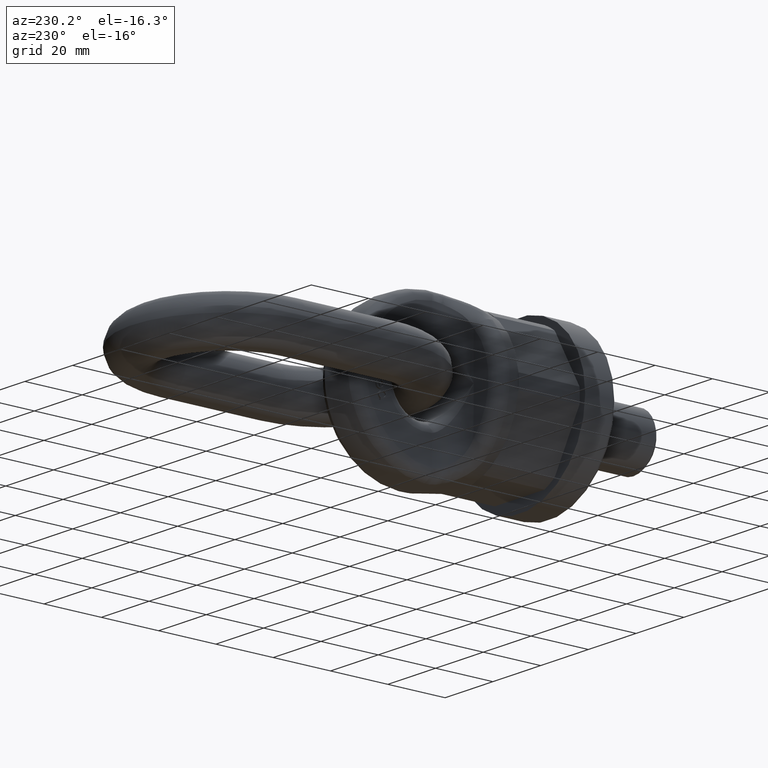
[diagram: clean part render]
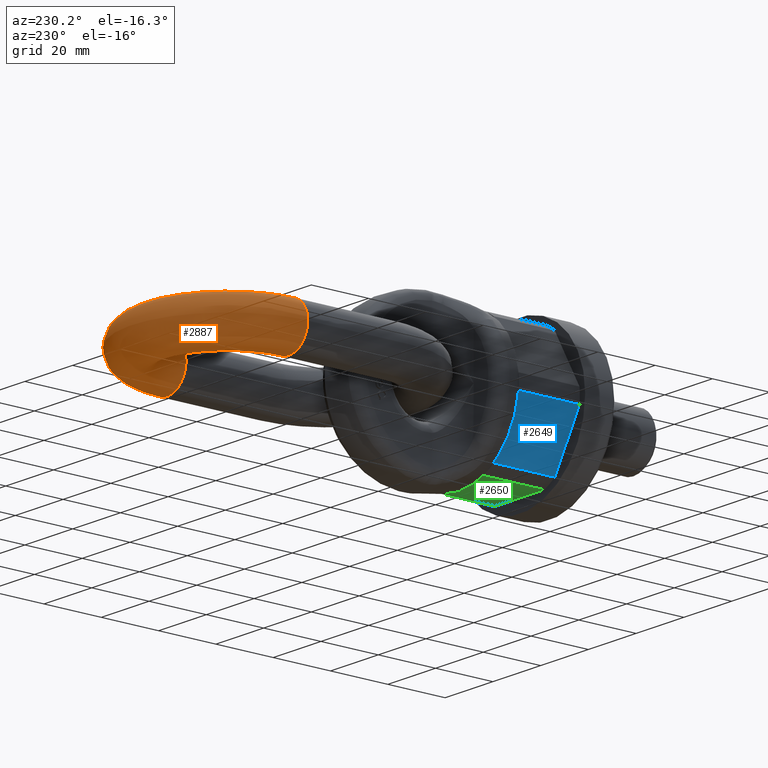
[diagram: same view with three faces highlighted in distinct colors, each labeled with its STEP entity id]
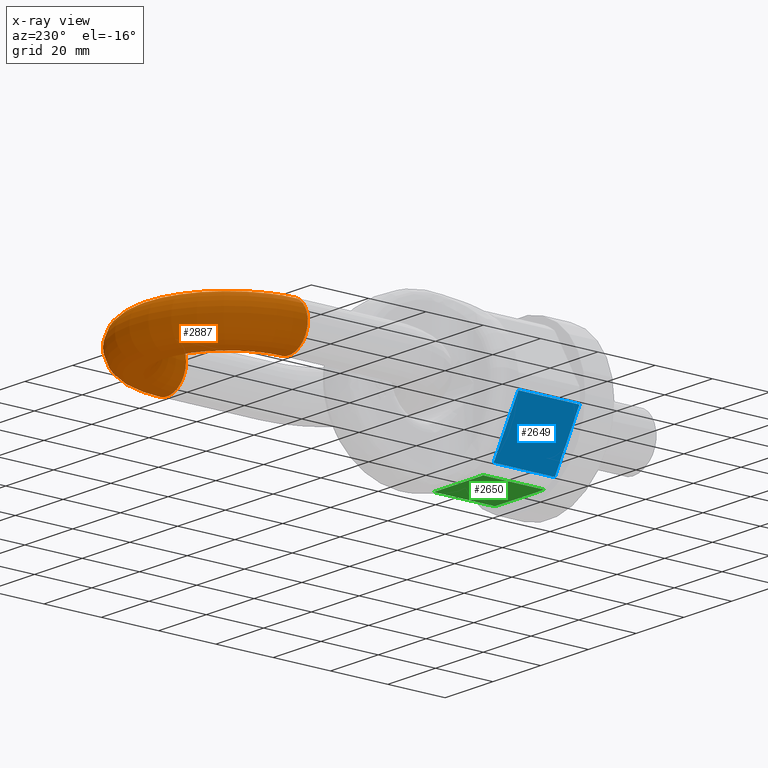
[diagram: x-ray of the same camera — body ghosted, the three highlighted faces saturated]
A machine part, auxiliary view with three faces highlighted in distinct colors.
The next image is the same camera in x-ray (body ghosted, the three faces saturated) — at least one of them is partly hidden behind the body in this view.
Their STEP definitions:

[orange] entity #2887 — the highlighted toroidal blend (fillet) surface has major radius 25.5 mm and minor (blend) radius 8 mm.
#1805=TOROIDAL_SURFACE('',#5808,25.5,8.);
#2887=ADVANCED_FACE('',(#3063,#3064),#1805,.T.);
#3063=FACE_BOUND('',#3349,.T.);
#3064=FACE_BOUND('',#3350,.T.);
#3349=EDGE_LOOP('',(#4541));
#3350=EDGE_LOOP('',(#4542));
#4541=ORIENTED_EDGE('',*,*,#5536,.F.);
#4542=ORIENTED_EDGE('',*,*,#5534,.T.);
#4938=VERTEX_POINT('',#9688);
#4940=VERTEX_POINT('',#9694);
#5534=EDGE_CURVE('',#4938,#4938,#5600,.T.);
#5536=EDGE_CURVE('',#4940,#4940,#5602,.T.);
#5600=CIRCLE('',#5802,8.);
#5602=CIRCLE('',#5806,8.);
#5802=AXIS2_PLACEMENT_3D('',#9687,#6555,#6556);
#5806=AXIS2_PLACEMENT_3D('',#9693,#6563,#6564);
#5808=AXIS2_PLACEMENT_3D('',#9696,#6567,#6568);
#6555=DIRECTION('',(-1.21365530983203E-15,1.,0.));
#6556=DIRECTION('',(-1.,-1.73472347597681E-15,0.));
#6563=DIRECTION('',(2.03012210217171E-16,-1.,0.));
#6564=DIRECTION('',(1.,0.,0.));
#6567=DIRECTION('',(0.,0.,1.));
#6568=DIRECTION('',(1.,0.,0.));
#9687=CARTESIAN_POINT('',(-25.5,112.5,0.));
#9688=CARTESIAN_POINT('',(-33.5,112.5,0.));
#9693=CARTESIAN_POINT('',(25.5,112.5,0.));
#9694=CARTESIAN_POINT('',(33.5,112.5,0.));
#9696=CARTESIAN_POINT('',(1.73472347597681E-14,112.5,0.));

[blue] entity #2649 — the highlighted planar face has unit normal (-0.866, 0, -0.5).
#1807=FACE_OUTER_BOUND('',#3072,.T.);
#2044=LINE('',#6590,#2300);
#2050=LINE('',#6611,#2306);
#2051=LINE('',#6613,#2307);
#2052=LINE('',#6615,#2308);
#2300=VECTOR('',#5828,1.);
#2306=VECTOR('',#5848,1.);
#2307=VECTOR('',#5849,1.);
#2308=VECTOR('',#5850,1.);
#2649=ADVANCED_FACE('',(#1807),#2891,.T.);
#2891=PLANE('',#5618);
#3072=EDGE_LOOP('',(#3372,#3373,#3374,#3375));
#3372=ORIENTED_EDGE('',*,*,#4960,.F.);
#3373=ORIENTED_EDGE('',*,*,#4950,.T.);
#3374=ORIENTED_EDGE('',*,*,#4961,.F.);
#3375=ORIENTED_EDGE('',*,*,#4962,.T.);
#4552=VERTEX_POINT('',#6589);
#4553=VERTEX_POINT('',#6591);
#4561=VERTEX_POINT('',#6612);
#4562=VERTEX_POINT('',#6614);
#4950=EDGE_CURVE('',#4553,#4552,#2044,.T.);
#4960=EDGE_CURVE('',#4553,#4561,#2050,.T.);
#4961=EDGE_CURVE('',#4562,#4552,#2051,.T.);
#4962=EDGE_CURVE('',#4562,#4561,#2052,.T.);
#5618=AXIS2_PLACEMENT_3D('',#6616,#5851,#5852);
#5828=DIRECTION('',(-0.499999999999999,-2.05702392044282E-17,0.866025403784439));
#5848=DIRECTION('',(-2.4492935982947E-17,1.,0.));
#5849=DIRECTION('',(2.4492935982947E-17,-1.,0.));
#5850=DIRECTION('',(0.499999999999999,0.,-0.866025403784439));
#5851=DIRECTION('',(-0.866025403784439,0.,-0.499999999999999));
#5852=DIRECTION('',(-0.499999999999999,0.,0.866025403784439));
#6589=CARTESIAN_POINT('',(-25.1042215027884,10.6666666666667,-2.51821287270725));
#6590=CARTESIAN_POINT('',(-13.0435842870421,10.6666666666667,-23.407849302036));
#6591=CARTESIAN_POINT('',(-14.7329470712957,10.6666666666667,-20.4817871272927));
#6611=CARTESIAN_POINT('',(-14.7329470712957,1.27011480356063E-16,-20.4817871272927));
#6612=CARTESIAN_POINT('',(-14.7329470712957,32.,-20.4817871272927));
#6613=CARTESIAN_POINT('',(-25.1042215027884,-1.27011480356063E-16,-2.51821287270725));
#6614=CARTESIAN_POINT('',(-25.1042215027884,32.,-2.51821287270725));
#6615=CARTESIAN_POINT('',(-26.5581123827227,32.,0.));
#6616=CARTESIAN_POINT('',(-26.5581123827227,32.,0.));

[green] entity #2650 — the highlighted planar face has unit normal (0, 0, -1).
#1808=FACE_OUTER_BOUND('',#3073,.T.);
#2045=LINE('',#6594,#2301);
#2053=LINE('',#6617,#2309);
#2054=LINE('',#6619,#2310);
#2055=LINE('',#6621,#2311);
#2301=VECTOR('',#5831,1.);
#2309=VECTOR('',#5853,1.);
#2310=VECTOR('',#5854,1.);
#2311=VECTOR('',#5855,1.);
#2650=ADVANCED_FACE('',(#1808),#2892,.T.);
#2892=PLANE('',#5619);
#3073=EDGE_LOOP('',(#3376,#3377,#3378,#3379));
#3376=ORIENTED_EDGE('',*,*,#4963,.F.);
#3377=ORIENTED_EDGE('',*,*,#4952,.T.);
#3378=ORIENTED_EDGE('',*,*,#4964,.F.);
#3379=ORIENTED_EDGE('',*,*,#4965,.T.);
#4554=VERTEX_POINT('',#6593);
#4555=VERTEX_POINT('',#6595);
#4563=VERTEX_POINT('',#6618);
#4564=VERTEX_POINT('',#6620);
#4952=EDGE_CURVE('',#4555,#4554,#2045,.T.);
#4963=EDGE_CURVE('',#4555,#4563,#2053,.T.);
#4964=EDGE_CURVE('',#4564,#4554,#2054,.T.);
#4965=EDGE_CURVE('',#4564,#4563,#2055,.T.);
#5619=AXIS2_PLACEMENT_3D('',#6622,#5856,#5857);
#5831=DIRECTION('',(-1.,-4.11404784088564E-17,0.));
#5853=DIRECTION('',(-2.4492935982947E-17,1.,0.));
#5854=DIRECTION('',(2.4492935982947E-17,-1.,0.));
#5855=DIRECTION('',(1.,0.,0.));
#5856=DIRECTION('',(0.,0.,-1.));
#5857=DIRECTION('',(-1.,0.,0.));
#6593=CARTESIAN_POINT('',(-10.3712744314926,10.6666666666667,-23.));
#6594=CARTESIAN_POINT('',(27.5,10.6666666666667,-23.));
#6595=CARTESIAN_POINT('',(10.3712744314926,10.6666666666667,-23.));
#6617=CARTESIAN_POINT('',(10.3712744314926,2.54022960712125E-16,-23.));
#6618=CARTESIAN_POINT('',(10.3712744314926,32.,-23.));
#6619=CARTESIAN_POINT('',(-10.3712744314926,-2.54022960712125E-16,-23.));
#6620=CARTESIAN_POINT('',(-10.3712744314926,32.,-23.));
#6621=CARTESIAN_POINT('',(-13.2790561913614,32.,-23.));
#6622=CARTESIAN_POINT('',(-13.2790561913614,32.,-23.));